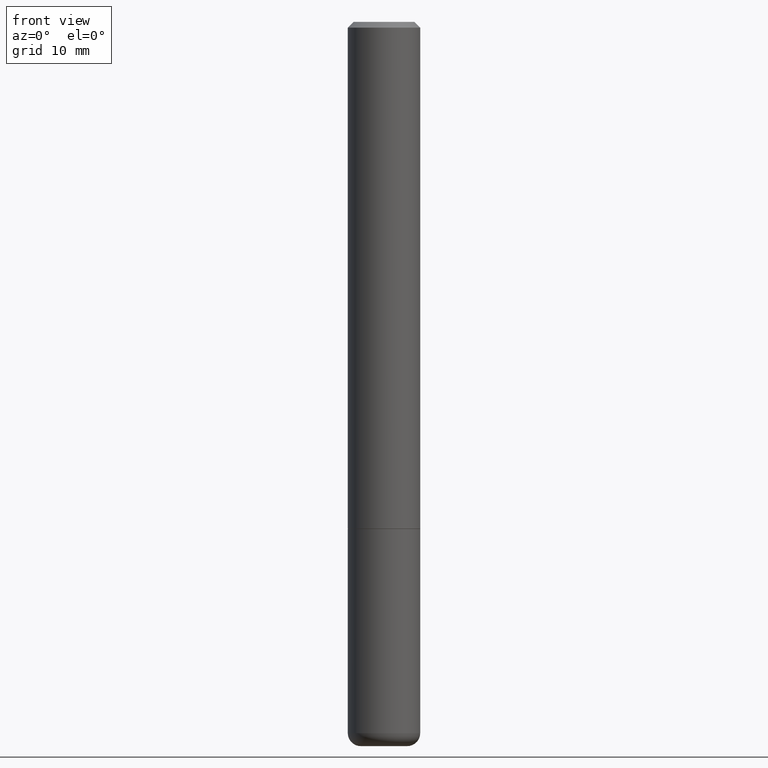
[diagram: clean part render]
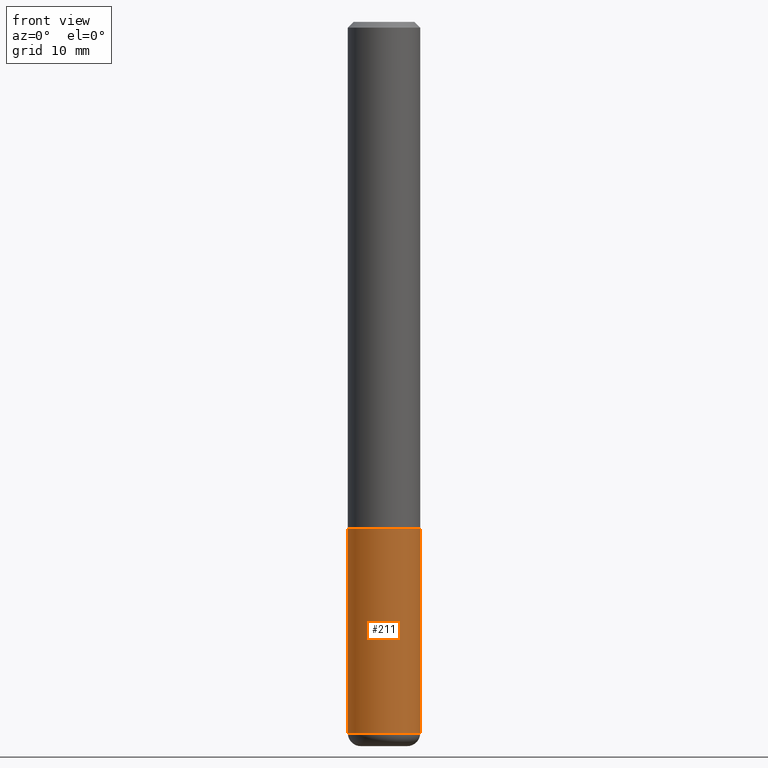
[diagram: same view with one face highlighted and labeled with its STEP entity id]
A machine part, front view. The second image highlights one B-rep face of the part: STEP entity #211.
In plain terms, the highlighted cylindrical surface (edge-blend (fillet) strip) has radius 3.175 mm, axis along (-0, 0, 1).
Its self-contained STEP definition (entity closure, byte-faithful):
#6 = EDGE_CURVE ( 'NONE', #318, #110, #44, .T. ) ;
#22 = AXIS2_PLACEMENT_3D ( 'NONE', #144, #77, #107 ) ;
#36 = AXIS2_PLACEMENT_3D ( 'NONE', #230, #65, #268 ) ;
#44 = CIRCLE ( 'NONE', #36, 0.1250000000000000000 ) ;
#47 = EDGE_CURVE ( 'NONE', #344, #318, #172, .T. ) ;
#64 = DIRECTION ( 'NONE',  ( -2.445468806185136597E-29, 3.491481338843145583E-15, 1.000000000000000000 ) ) ;
#65 = DIRECTION ( 'NONE',  ( -2.445468806185136597E-29, 3.491481338843145583E-15, 1.000000000000000000 ) ) ;
#69 = VECTOR ( 'NONE', #269, 39.37007874015748143 ) ;
#77 = DIRECTION ( 'NONE',  ( -2.445468806185136597E-29, 3.491481338843145583E-15, 1.000000000000000000 ) ) ;
#92 = CARTESIAN_POINT ( 'NONE',  ( 0.1250000000000000000, -6.982962677686288010E-15, -1.750000000000000222 ) ) ;
#93 = CYLINDRICAL_SURFACE ( 'NONE', #238, 0.1250000000000000000 ) ;
#96 = CIRCLE ( 'NONE', #22, 0.1250000000000000000 ) ;
#107 = DIRECTION ( 'NONE',  ( 1.000000000000000000, -6.982962677686270655E-15, 0.000000000000000000 ) ) ;
#110 = VERTEX_POINT ( 'NONE', #92 ) ;
#118 = ORIENTED_EDGE ( 'NONE', *, *, #412, .T. ) ;
#137 = VECTOR ( 'NONE', #279, 39.37007874015748143 ) ;
#144 = CARTESIAN_POINT ( 'NONE',  ( 6.003776733534854503E-29, -8.571802009782270255E-15, -2.455061670936044216 ) ) ;
#159 = FACE_OUTER_BOUND ( 'NONE', #285, .T. ) ;
#172 = LINE ( 'NONE', #235, #69 ) ;
#195 = DIRECTION ( 'NONE',  ( 1.000000000000000000, -6.982962677686266711E-15, 4.876176775795935793E-29 ) ) ;
#211 = ADVANCED_FACE ( 'NONE', ( #159 ), #93, .T. ) ;
#221 = CARTESIAN_POINT ( 'NONE',  ( 0.1250000000000000000, -8.728703347107833388E-16, 6.095220969744919741E-30 ) ) ;
#230 = CARTESIAN_POINT ( 'NONE',  ( 4.279570410823989044E-29, -6.110092342975505460E-15, -1.750000000000000222 ) ) ;
#235 = CARTESIAN_POINT ( 'NONE',  ( -0.1250000000000000000, 8.881784197001252323E-16, -6.148668862818632227E-30 ) ) ;
#238 = AXIS2_PLACEMENT_3D ( 'NONE', #368, #64, #195 ) ;
#268 = DIRECTION ( 'NONE',  ( 1.000000000000000000, -6.982962677686262766E-15, 0.000000000000000000 ) ) ;
#269 = DIRECTION ( 'NONE',  ( -2.445468806185136877E-29, 3.491481338843145188E-15, 1.000000000000000000 ) ) ;
#270 = ORIENTED_EDGE ( 'NONE', *, *, #421, .T. ) ;
#279 = DIRECTION ( 'NONE',  ( -2.445468806185136877E-29, 3.491481338843145188E-15, 1.000000000000000000 ) ) ;
#283 = CARTESIAN_POINT ( 'NONE',  ( 0.1250000000000000000, -9.444672344493053593E-15, -2.455061670936044216 ) ) ;
#285 = EDGE_LOOP ( 'NONE', ( #312, #118, #270, #391 ) ) ;
#312 = ORIENTED_EDGE ( 'NONE', *, *, #47, .F. ) ;
#318 = VERTEX_POINT ( 'NONE', #361 ) ;
#344 = VERTEX_POINT ( 'NONE', #436 ) ;
#357 = VERTEX_POINT ( 'NONE', #283 ) ;
#361 = CARTESIAN_POINT ( 'NONE',  ( -0.1250000000000000000, -6.452768756678761836E-15, -1.750000000000000222 ) ) ;
#368 = CARTESIAN_POINT ( 'NONE',  ( 0.000000000000000000, 0.000000000000000000, 0.000000000000000000 ) ) ;
#391 = ORIENTED_EDGE ( 'NONE', *, *, #6, .F. ) ;
#412 = EDGE_CURVE ( 'NONE', #344, #357, #96, .T. ) ;
#421 = EDGE_CURVE ( 'NONE', #357, #110, #429, .T. ) ;
#429 = LINE ( 'NONE', #221, #137 ) ;
#436 = CARTESIAN_POINT ( 'NONE',  ( -0.1250000000000000000, -6.452768756678761836E-15, -2.455061670936044216 ) ) ;